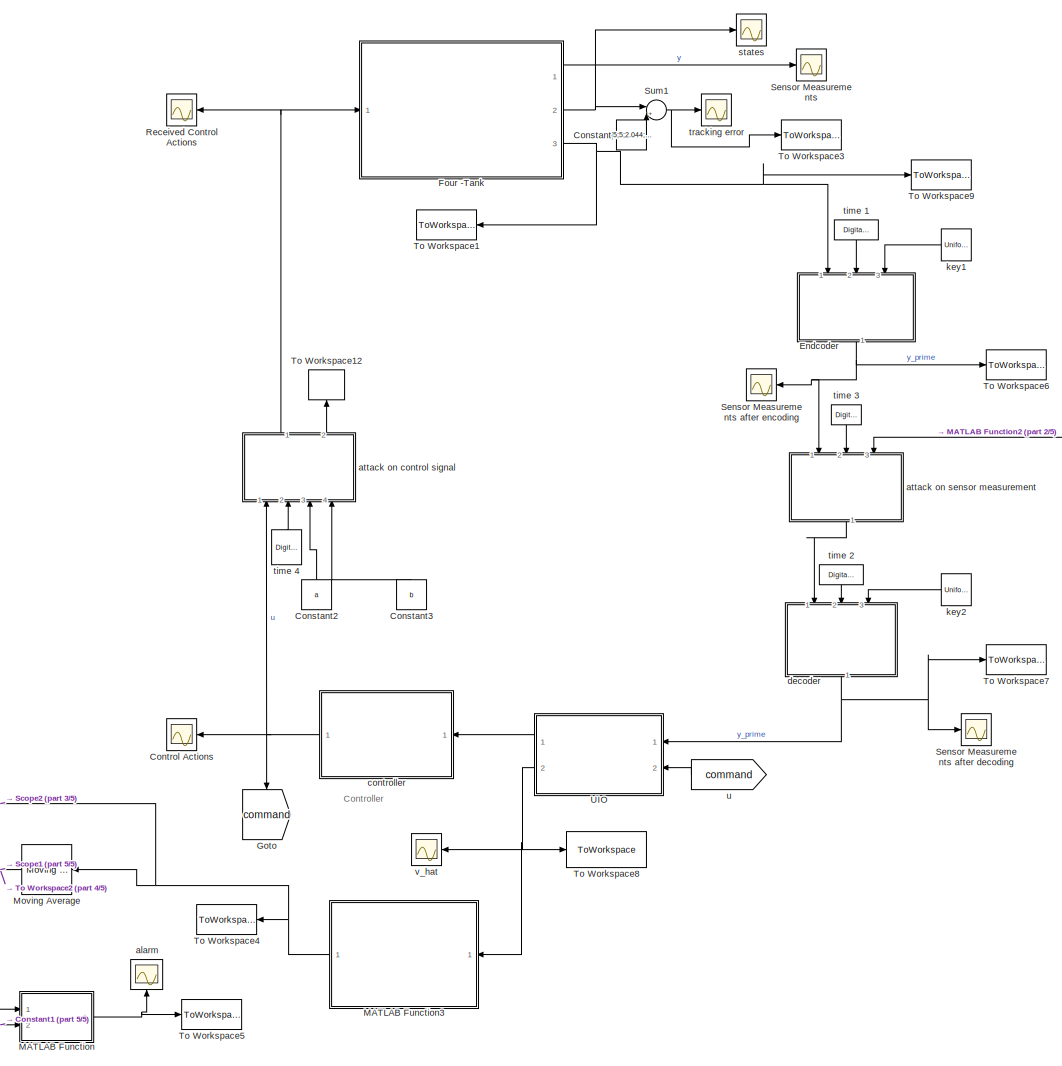
[diagram: root canvas - part 1/5, center side, full height]
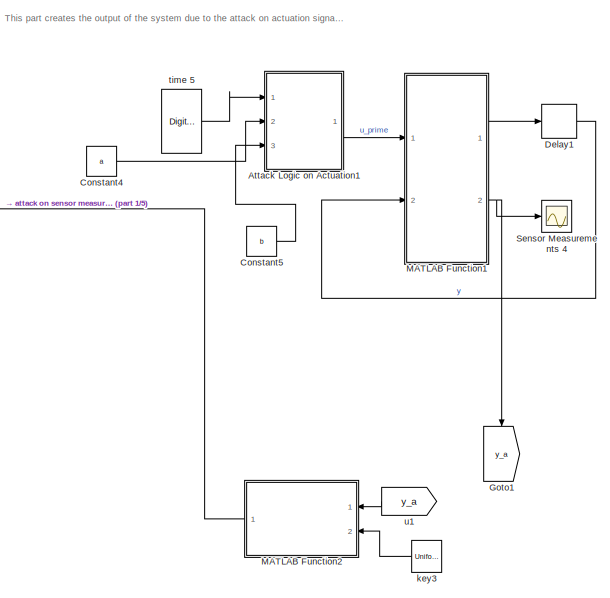
[diagram: root canvas - part 2/5, middle right region]
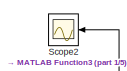
[diagram: root canvas - part 3/5, middle left region]
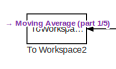
[diagram: root canvas - part 4/5, bottom left region]
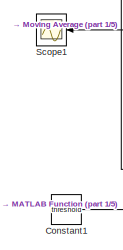
[diagram: root canvas - part 5/5, bottom left region]
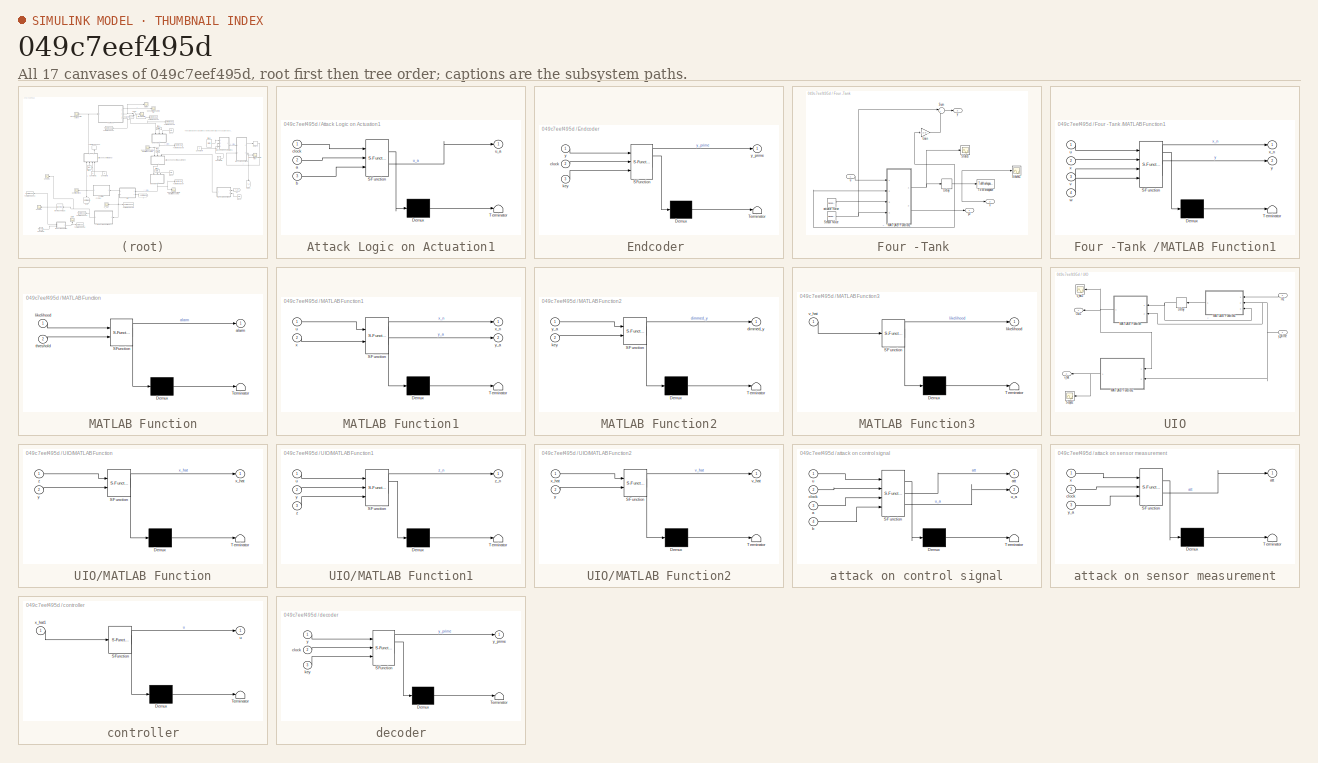
[diagram: thumbnail index - all 17 canvases of the model, root first then tree order]
MODEL slx_049c7eef495d
KIND model
CONFIG AbsTol = auto
CONFIG EnableMultiTasking = off
CONFIG FixedStep = auto
CONFIG MaxStep = auto
CONFIG MinStep = auto
CONFIG RelTol = 1e-3
CONFIG SampleTimeConstraint = Unconstrained
CONFIG SolverName = VariableStepAuto
CONFIG StartTime = 0.0
CONFIG StopTime = simulation_time
BLOCK [Scope]  Control Actions
  Floating = off
  NumInputPorts = 1
  Ports = [1]
  ScopeSpecificationString = Simulink.scopes.TimeScopeBlockCfg('CurrentConfiguration', extmgr.ConfigurationSet(extmgr.Configuration('Core','General UI',true),extmgr.Configuration('Core','Source UI',true),extmgr.Configuration('Sources','WiredSimulink',true,'DataLoggingLimitDataPoints',true,'DataLoggingSaveFormat','Array','DataLoggingDecimation','1','DataLoggingDecimateData',true,'DataLoggingVariableName','ScopeData1'),extmgr.C...<+1578ch>
BLOCK [SubSystem] Attack Logic on Actuation1
  ErrorFcn = Stateflow.Translate.translate
  PermitHierarchicalResolution = ExplicitOnly
  Ports = [3, 1]
  RequestExecContextInheritance = off
  SFBlockType = MATLAB Function
  TreatAsAtomicUnit = on
BLOCK [Demux] Attack Logic on Actuation1/ Demux 
  Outputs = 1
  Ports = [1, 1]
BLOCK [S-Function] Attack Logic on Actuation1/ SFunction 
  EnableBusSupport = on
  FunctionName = sf_sfun
  PortCounts = [3 2]
  Ports = [3, 2]
  SFcnIsStateOwnerBlock = off
  SFunctionDeploymentMode = off
  Tag = Stateflow S-Function 12
BLOCK [Terminator] Attack Logic on Actuation1/ Terminator 
BLOCK [Inport] Attack Logic on Actuation1/a
  Port = 2
BLOCK [Inport] Attack Logic on Actuation1/b
  Port = 3
BLOCK [Inport] Attack Logic on Actuation1/clock
BLOCK [Outport] Attack Logic on Actuation1/u_a
  VectorParamsAs1DForOutWhenUnconnected = off
BLOCK [Constant] Constant
  SampleTime = sample_time
  Value = [5;5;2.044;1.399]
BLOCK [Constant] Constant1
  SampleTime = sample_time
  Value = threshold
BLOCK [Constant] Constant2
  NameLocation = right
  SampleTime = sample_time
  Value = a
BLOCK [Constant] Constant3
  NameLocation = right
  SampleTime = sample_time
  Value = b
BLOCK [Constant] Constant4
  SampleTime = sample_time
  Value = a
BLOCK [Constant] Constant5
  SampleTime = sample_time
  Value = b
BLOCK [Delay] Delay1
  DelayLength = 1
  InitialCondition = [0;0;0;0]
  InputPortMap = u0
  Ports = [1, 1]
  SampleTime = sample_time
BLOCK [SubSystem] Endcoder 
  ErrorFcn = Stateflow.Translate.translate
  NameLocation = left
  PermitHierarchicalResolution = ExplicitOnly
  Ports = [3, 1]
  RequestExecContextInheritance = off
  SFBlockType = MATLAB Function
  TreatAsAtomicUnit = on
BLOCK [Demux] Endcoder / Demux 
  Outputs = 1
  Ports = [1, 1]
BLOCK [S-Function] Endcoder / SFunction 
  EnableBusSupport = on
  FunctionName = sf_sfun
  PortCounts = [3 2]
  Ports = [3, 2]
  SFcnIsStateOwnerBlock = off
  SFunctionDeploymentMode = off
  Tag = Stateflow S-Function 1
BLOCK [Terminator] Endcoder / Terminator 
BLOCK [Inport] Endcoder /clock
  Port = 2
BLOCK [Inport] Endcoder /key
  Port = 3
BLOCK [Inport] Endcoder /y
BLOCK [Outport] Endcoder /y_prime
  VectorParamsAs1DForOutWhenUnconnected = off
BLOCK [SubSystem] Four -Tank 
  Ports = [1, 3]
  RequestExecContextInheritance = off
BLOCK [Delay] Four -Tank /Delay
  DelayLength = 1
  InitialCondition = [5;5;2;1]
  InputPortMap = u0
  Ports = [1, 1]
  SampleTime = sample_time
BLOCK [Gain] Four -Tank /Gain
  Gain = [0.2 0 0 0;0 1.5 0 0;0 0 10.5 0;0 0 0 1.7]
  Multiplication = Matrix(K*u)
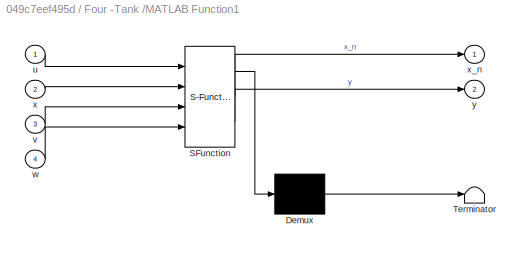
BLOCK [SubSystem] Four -Tank /MATLAB Function1
  ErrorFcn = Stateflow.Translate.translate
  PermitHierarchicalResolution = ExplicitOnly
  Ports = [4, 2]
  RequestExecContextInheritance = off
  SFBlockType = MATLAB Function
  TreatAsAtomicUnit = on
BLOCK [Demux] Four -Tank /MATLAB Function1/ Demux 
  Outputs = 1
  Ports = [1, 1]
BLOCK [S-Function] Four -Tank /MATLAB Function1/ SFunction 
  EnableBusSupport = on
  FunctionName = sf_sfun
  PortCounts = [4 3]
  Ports = [4, 3]
  SFcnIsStateOwnerBlock = off
  SFunctionDeploymentMode = off
  Tag = Stateflow S-Function 5
BLOCK [Terminator] Four -Tank /MATLAB Function1/ Terminator 
BLOCK [Inport] Four -Tank /MATLAB Function1/u
BLOCK [Inport] Four -Tank /MATLAB Function1/v
  Port = 3
BLOCK [Inport] Four -Tank /MATLAB Function1/w
  Port = 4
BLOCK [Inport] Four -Tank /MATLAB Function1/x
  Port = 2
BLOCK [Outport] Four -Tank /MATLAB Function1/x_n
  VectorParamsAs1DForOutWhenUnconnected = off
BLOCK [Outport] Four -Tank /MATLAB Function1/y
  Port = 2
  VectorParamsAs1DForOutWhenUnconnected = off
BLOCK [RandomNumber] Four -Tank /Sensor Noise
  Mean = [0 0 0 0]
  SampleTime = sample_time
  Seed = [randi(100) randi(100) randi(100) randi(100)]
  Variance = [0.00001 0.00001 0.00001 0.00001]
BLOCK [Scope] Four -Tank /States
  Floating = off
  NumInputPorts = 1
  Ports = [1]
  ScopeSpecificationString = Simulink.scopes.TimeScopeBlockCfg('CurrentConfiguration', extmgr.ConfigurationSet(extmgr.Configuration('Core','General UI',true),extmgr.Configuration('Core','Source UI',true),extmgr.Configuration('Sources','WiredSimulink',true,'DataLoggingVariableName','ScopeData1'),extmgr.Configuration('Visuals','Time Domain',true,'SerializedDisplays',{struct('MinYLimReal','-8.8915','MaxYLimReal','5.79536','YLabe...<+1550ch>
BLOCK [Scope] Four -Tank /States1
  Floating = off
  NumInputPorts = 1
  Ports = [1]
  ScopeSpecificationString = Simulink.scopes.TimeScopeBlockCfg('CurrentConfiguration', extmgr.ConfigurationSet(extmgr.Configuration('Core','General UI',true),extmgr.Configuration('Core','Source UI',true),extmgr.Configuration('Sources','WiredSimulink',true,'DataLoggingVariableName','ScopeData1'),extmgr.Configuration('Visuals','Time Domain',true,'SerializedDisplays',{struct('MinYLimReal','-3.65884','MaxYLimReal','5.96209','YLab...<+1477ch>
BLOCK [Sum] Four -Tank /Sum
  Inputs = |++
  Ports = [2, 1]
BLOCK [ToWorkspace] Four -Tank /To Workspace
  FixptAsFi = on
  MaxDataPoints = inf
  Ports = [1]
  SampleTime = sample_time
  SaveFormat = Timeseries
  VariableName = x_k
BLOCK [RandomNumber] Four -Tank /actuator Noise
  Mean = [0 0 0 0]
  SampleTime = sample_time
  Seed = [randi(100) randi(100) randi(100) randi(100)]
  Variance = [0.00001 0.00001 0.00001 0.00001]
BLOCK [Inport] Four -Tank /u
BLOCK [Outport] Four -Tank /x 
  Port = 2
  VectorParamsAs1DForOutWhenUnconnected = off
BLOCK [Outport] Four -Tank /y
  Port = 3
  VectorParamsAs1DForOutWhenUnconnected = off
BLOCK [Outport] Four -Tank /y2
  VectorParamsAs1DForOutWhenUnconnected = off
BLOCK [Goto] Goto
  GotoTag = command
  NameLocation = left
BLOCK [Goto] Goto1
  GotoTag = y_a
  NameLocation = left
BLOCK [SubSystem] MATLAB Function
  ErrorFcn = Stateflow.Translate.translate
  PermitHierarchicalResolution = ExplicitOnly
  Ports = [2, 1]
  RequestExecContextInheritance = off
  SFBlockType = MATLAB Function
  TreatAsAtomicUnit = on
BLOCK [Demux] MATLAB Function/ Demux 
  Outputs = 1
  Ports = [1, 1]
BLOCK [S-Function] MATLAB Function/ SFunction 
  EnableBusSupport = on
  FunctionName = sf_sfun
  PortCounts = [2 2]
  Ports = [2, 2]
  SFcnIsStateOwnerBlock = off
  SFunctionDeploymentMode = off
  Tag = Stateflow S-Function 11
BLOCK [Terminator] MATLAB Function/ Terminator 
BLOCK [Outport] MATLAB Function/alarm
BLOCK [Inport] MATLAB Function/likelihood
BLOCK [Inport] MATLAB Function/threshold
  Port = 2
BLOCK [SubSystem] MATLAB Function1
  ErrorFcn = Stateflow.Translate.translate
  PermitHierarchicalResolution = ExplicitOnly
  Ports = [2, 2]
  RequestExecContextInheritance = off
  SFBlockType = MATLAB Function
  TreatAsAtomicUnit = on
BLOCK [Demux] MATLAB Function1/ Demux 
  Outputs = 1
  Ports = [1, 1]
BLOCK [S-Function] MATLAB Function1/ SFunction 
  EnableBusSupport = on
  FunctionName = sf_sfun
  PortCounts = [2 3]
  Ports = [2, 3]
  SFcnIsStateOwnerBlock = off
  SFunctionDeploymentMode = off
  Tag = Stateflow S-Function 13
BLOCK [Terminator] MATLAB Function1/ Terminator 
BLOCK [Inport] MATLAB Function1/u
BLOCK [Inport] MATLAB Function1/x
  Port = 2
BLOCK [Outport] MATLAB Function1/x_n
  VectorParamsAs1DForOutWhenUnconnected = off
BLOCK [Outport] MATLAB Function1/y_a
  Port = 2
  VectorParamsAs1DForOutWhenUnconnected = off
BLOCK [SubSystem] MATLAB Function2
  ErrorFcn = Stateflow.Translate.translate
  NameLocation = top
  PermitHierarchicalResolution = ExplicitOnly
  Ports = [2, 1]
  RequestExecContextInheritance = off
  SFBlockType = MATLAB Function
  TreatAsAtomicUnit = on
BLOCK [Demux] MATLAB Function2/ Demux 
  Outputs = 1
  Ports = [1, 1]
BLOCK [S-Function] MATLAB Function2/ SFunction 
  EnableBusSupport = on
  FunctionName = sf_sfun
  PortCounts = [2 2]
  Ports = [2, 2]
  SFcnIsStateOwnerBlock = off
  SFunctionDeploymentMode = off
  Tag = Stateflow S-Function 14
BLOCK [Terminator] MATLAB Function2/ Terminator 
BLOCK [Outport] MATLAB Function2/dimmed_y
  VectorParamsAs1DForOutWhenUnconnected = off
BLOCK [Inport] MATLAB Function2/key
  Port = 2
BLOCK [Inport] MATLAB Function2/y_a
BLOCK [SubSystem] MATLAB Function3
  ErrorFcn = Stateflow.Translate.translate
  NameLocation = top
  PermitHierarchicalResolution = ExplicitOnly
  Ports = [1, 1]
  RequestExecContextInheritance = off
  SFBlockType = MATLAB Function
  TreatAsAtomicUnit = on
BLOCK [Demux] MATLAB Function3/ Demux 
  Outputs = 1
  Ports = [1, 1]
BLOCK [S-Function] MATLAB Function3/ SFunction 
  EnableBusSupport = on
  FunctionName = sf_sfun
  PortCounts = [1 2]
  Ports = [1, 2]
  SFcnIsStateOwnerBlock = off
  SFunctionDeploymentMode = off
  Tag = Stateflow S-Function 7
BLOCK [Terminator] MATLAB Function3/ Terminator 
BLOCK [Outport] MATLAB Function3/likelihood
  VectorParamsAs1DForOutWhenUnconnected = off
BLOCK [Inport] MATLAB Function3/v_hat
BLOCK [Reference] Moving Average  REF=dspstat3/Moving
Average
  NameLocation = top
  Ports = [1, 1]
  SourceBlock = dspstat3/Moving\nAverage
  SourceProductBaseCode = DS
  SourceType = dsp.simulink.MovingAverage
BLOCK [Scope] Received Control Actions
  Floating = off
  NumInputPorts = 1
  Ports = [1]
  ScopeSpecificationString = Simulink.scopes.TimeScopeBlockCfg('CurrentConfiguration', extmgr.ConfigurationSet(extmgr.Configuration('Core','General UI',true),extmgr.Configuration('Core','Source UI',true),extmgr.Configuration('Sources','WiredSimulink',true,'DataLoggingLimitDataPoints',true,'DataLoggingSaveFormat','Array','DataLoggingDecimation','1','DataLoggingDecimateData',true,'DataLoggingVariableName','ScopeData2'),extmgr.C...<+1652ch>
BLOCK [Scope] Scope1
  Floating = off
  NameLocation = top
  NumInputPorts = 1
  Ports = [1]
  ScopeSpecificationString = Simulink.scopes.TimeScopeBlockCfg('CurrentConfiguration', extmgr.ConfigurationSet(extmgr.Configuration('Core','General UI',true),extmgr.Configuration('Core','Source UI',true),extmgr.Configuration('Sources','WiredSimulink',true,'DataLoggingVariableName','ScopeData4'),extmgr.Configuration('Visuals','Time Domain',true,'SerializedDisplays',{struct('MinYLimReal','-1286647809354.28613','MaxYLimReal','11...<+1550ch>
BLOCK [Scope] Scope2
  Floating = off
  NameLocation = top
  NumInputPorts = 1
  Ports = [1]
  ScopeSpecificationString = Simulink.scopes.TimeScopeBlockCfg('CurrentConfiguration', extmgr.ConfigurationSet(extmgr.Configuration('Core','General UI',true),extmgr.Configuration('Core','Source UI',true),extmgr.Configuration('Sources','WiredSimulink',true,'DataLoggingVariableName','ScopeData1'),extmgr.Configuration('Visuals','Time Domain',true,'SerializedDisplays',{struct('MinYLimReal','-23321549837740042746050882842062409475...<+2506ch>
BLOCK [Scope] Sensor Measurements
  Floating = off
  NumInputPorts = 1
  Ports = [1]
  ScopeSpecificationString = Simulink.scopes.TimeScopeBlockCfg('CurrentConfiguration', extmgr.ConfigurationSet(extmgr.Configuration('Core','General UI',true),extmgr.Configuration('Core','Source UI',true),extmgr.Configuration('Sources','WiredSimulink',true,'DataLoggingVariableName','ScopeData5'),extmgr.Configuration('Visuals','Time Domain',true,'SerializedDisplays',{struct('MinYLimReal','-2.1924','MaxYLimReal','29.63231','YLab...<+1463ch>
BLOCK [Scope] Sensor Measurements 4
  Floating = off
  NumInputPorts = 1
  Ports = [1]
  ScopeSpecificationString = Simulink.scopes.TimeScopeBlockCfg('CurrentConfiguration', extmgr.ConfigurationSet(extmgr.Configuration('Core','General UI',true),extmgr.Configuration('Core','Source UI',true),extmgr.Configuration('Sources','WiredSimulink',true,'DataLoggingVariableName','ScopeData12'),extmgr.Configuration('Visuals','Time Domain',true,'SerializedDisplays',{struct('MinYLimReal','-17.50746','MaxYLimReal','25.27861','Y...<+1561ch>
BLOCK [Scope] Sensor Measurements after decoding
  Floating = off
  NumInputPorts = 1
  Ports = [1]
  ScopeSpecificationString = Simulink.scopes.TimeScopeBlockCfg('CurrentConfiguration', extmgr.ConfigurationSet(extmgr.Configuration('Core','General UI',true),extmgr.Configuration('Core','Source UI',true),extmgr.Configuration('Sources','WiredSimulink',true,'DataLoggingVariableName','ScopeData6'),extmgr.Configuration('Visuals','Time Domain',true,'SerializedDisplays',{struct('MinYLimReal','-10.80747','MaxYLimReal','71.42508','YL...<+1491ch>
BLOCK [Scope] Sensor Measurements after encoding
  Floating = off
  NameLocation = top
  NumInputPorts = 1
  Ports = [1]
  ScopeSpecificationString = Simulink.scopes.TimeScopeBlockCfg('CurrentConfiguration', extmgr.ConfigurationSet(extmgr.Configuration('Core','General UI',true),extmgr.Configuration('Core','Source UI',true),extmgr.Configuration('Sources','WiredSimulink',true,'DataLoggingVariableName','ScopeData7'),extmgr.Configuration('Visuals','Time Domain',true,'SerializedDisplays',{struct('MinYLimReal','-1.23114','MaxYLimReal','1.77363','YLab...<+1637ch>
BLOCK [Sum] Sum1
  Inputs = |+-
  Ports = [2, 1]
BLOCK [ToWorkspace] To Workspace1
  FixptAsFi = on
  MaxDataPoints = inf
  NameLocation = top
  Ports = [1]
  SampleTime = sample_time
  SaveFormat = Timeseries
  VariableName = states
BLOCK [ToWorkspace] To Workspace12
  FixptAsFi = on
  MaxDataPoints = inf
  NameLocation = right
  Ports = [1]
  SampleTime = sample_time
  SaveFormat = Timeseries
  VariableName = u_a
BLOCK [ToWorkspace] To Workspace2
  FixptAsFi = on
  MaxDataPoints = inf
  NameLocation = top
  Ports = [1]
  SampleTime = sample_time
  SaveFormat = Timeseries
  VariableName = likelihood_av
BLOCK [ToWorkspace] To Workspace3
  FixptAsFi = on
  MaxDataPoints = inf
  Ports = [1]
  SampleTime = sample_time
  SaveFormat = Timeseries
  VariableName = tracking_error
BLOCK [ToWorkspace] To Workspace4
  FixptAsFi = on
  MaxDataPoints = inf
  NameLocation = top
  Ports = [1]
  SampleTime = sample_time
  SaveFormat = Timeseries
  VariableName = likelihood
BLOCK [ToWorkspace] To Workspace5
  FixptAsFi = on
  MaxDataPoints = inf
  Ports = [1]
  SampleTime = sample_time
  SaveFormat = Timeseries
  VariableName = alarm
BLOCK [ToWorkspace] To Workspace6
  FixptAsFi = on
  MaxDataPoints = inf
  Ports = [1]
  SampleTime = sample_time
  SaveFormat = Timeseries
  VariableName = channel_before
BLOCK [ToWorkspace] To Workspace7
  FixptAsFi = on
  MaxDataPoints = inf
  Ports = [1]
  SampleTime = sample_time
  SaveFormat = Timeseries
  VariableName = channel_after
BLOCK [ToWorkspace] To Workspace8
  FixptAsFi = on
  MaxDataPoints = inf
  Ports = [1]
  SampleTime = sample_time
  SaveFormat = Timeseries
  VariableName = v_hat
BLOCK [ToWorkspace] To Workspace9
  FixptAsFi = on
  MaxDataPoints = inf
  Ports = [1]
  SampleTime = sample_time
  SaveFormat = Timeseries
  VariableName = sensors
BLOCK [SubSystem] UIO
  Ports = [2, 2]
  RequestExecContextInheritance = off
BLOCK [Delay] UIO/Delay
  DelayLength = 1
  InitialCondition = [5;5;2;1]
  InputPortMap = u0
  NameLocation = top
  Ports = [1, 1]
  SampleTime = sample_time
BLOCK [Inport] UIO/In2
  Port = 2
BLOCK [SubSystem] UIO/MATLAB Function
  ErrorFcn = Stateflow.Translate.translate
  NameLocation = top
  PermitHierarchicalResolution = ExplicitOnly
  Ports = [2, 1]
  RequestExecContextInheritance = off
  SFBlockType = MATLAB Function
  TreatAsAtomicUnit = on
BLOCK [Demux] UIO/MATLAB Function/ Demux 
  Outputs = 1
  Ports = [1, 1]
BLOCK [S-Function] UIO/MATLAB Function/ SFunction 
  EnableBusSupport = on
  FunctionName = sf_sfun
  PortCounts = [2 2]
  Ports = [2, 2]
  SFcnIsStateOwnerBlock = off
  SFunctionDeploymentMode = off
  Tag = Stateflow S-Function 4
BLOCK [Terminator] UIO/MATLAB Function/ Terminator 
BLOCK [Outport] UIO/MATLAB Function/x_hat
  VectorParamsAs1DForOutWhenUnconnected = off
BLOCK [Inport] UIO/MATLAB Function/y
  Port = 2
BLOCK [Inport] UIO/MATLAB Function/z
BLOCK [SubSystem] UIO/MATLAB Function1
  ErrorFcn = Stateflow.Translate.translate
  NameLocation = top
  PermitHierarchicalResolution = ExplicitOnly
  Ports = [3, 1]
  RequestExecContextInheritance = off
  SFBlockType = MATLAB Function
  TreatAsAtomicUnit = on
BLOCK [Demux] UIO/MATLAB Function1/ Demux 
  Outputs = 1
  Ports = [1, 1]
BLOCK [S-Function] UIO/MATLAB Function1/ SFunction 
  EnableBusSupport = on
  FunctionName = sf_sfun
  PortCounts = [3 2]
  Ports = [3, 2]
  SFcnIsStateOwnerBlock = off
  SFunctionDeploymentMode = off
  Tag = Stateflow S-Function 3
BLOCK [Terminator] UIO/MATLAB Function1/ Terminator 
BLOCK [Inport] UIO/MATLAB Function1/u
BLOCK [Inport] UIO/MATLAB Function1/y
  Port = 2
BLOCK [Inport] UIO/MATLAB Function1/z
  Port = 3
BLOCK [Outport] UIO/MATLAB Function1/z_n
  VectorParamsAs1DForOutWhenUnconnected = off
BLOCK [SubSystem] UIO/MATLAB Function2
  ErrorFcn = Stateflow.Translate.translate
  NameLocation = top
  PermitHierarchicalResolution = ExplicitOnly
  Ports = [2, 1]
  RequestExecContextInheritance = off
  SFBlockType = MATLAB Function
  TreatAsAtomicUnit = on
BLOCK [Demux] UIO/MATLAB Function2/ Demux 
  Outputs = 1
  Ports = [1, 1]
BLOCK [S-Function] UIO/MATLAB Function2/ SFunction 
  EnableBusSupport = on
  FunctionName = sf_sfun
  PortCounts = [2 2]
  Ports = [2, 2]
  SFcnIsStateOwnerBlock = off
  SFunctionDeploymentMode = off
  Tag = Stateflow S-Function 6
BLOCK [Terminator] UIO/MATLAB Function2/ Terminator 
BLOCK [Outport] UIO/MATLAB Function2/v_hat
  VectorParamsAs1DForOutWhenUnconnected = off
BLOCK [Inport] UIO/MATLAB Function2/x_hat
BLOCK [Inport] UIO/MATLAB Function2/y
  Port = 2
BLOCK [Outport] UIO/Out1
  VectorParamsAs1DForOutWhenUnconnected = off
BLOCK [Scope] UIO/Scope2
  Floating = off
  NameLocation = top
  NumInputPorts = 1
  Ports = [1]
  ScopeSpecificationString = Simulink.scopes.TimeScopeBlockCfg('CurrentConfiguration', extmgr.ConfigurationSet(extmgr.Configuration('Core','General UI',true),extmgr.Configuration('Core','Source UI',true),extmgr.Configuration('Sources','WiredSimulink',true,'DataLoggingVariableName','ScopeData7'),extmgr.Configuration('Visuals','Time Domain',true,'SerializedDisplays',{struct('MinYLimReal','-0.05627','MaxYLimReal','0.04683','YLab...<+1494ch>
BLOCK [Outport] UIO/v_hat
  Port = 2
  VectorParamsAs1DForOutWhenUnconnected = off
BLOCK [Scope] UIO/v_hat2
  Floating = off
  NameLocation = top
  NumInputPorts = 1
  Ports = [1]
  ScopeSpecificationString = Simulink.scopes.TimeScopeBlockCfg('CurrentConfiguration', extmgr.ConfigurationSet(extmgr.Configuration('Core','General UI',true,'DisplayFullSourceName',true,'ShowStatusbar',false),extmgr.Configuration('Core','Source UI',true),extmgr.Configuration('Sources','WiredSimulink',true,'DataLoggingVariableName','ScopeData5'),extmgr.Configuration('Visuals','Time Domain',true,'SerializedDisplays',{struct('Mi...<+1564ch>
BLOCK [Inport] UIO/y_prime
  NameLocation = top
BLOCK [Scope] alarm
  Floating = off
  NameLocation = right
  NumInputPorts = 1
  Ports = [1]
  ScopeSpecificationString = Simulink.scopes.TimeScopeBlockCfg('CurrentConfiguration', extmgr.ConfigurationSet(extmgr.Configuration('Core','General UI',true,'ShowStatusbar',false),extmgr.Configuration('Core','Source UI',true),extmgr.Configuration('Sources','WiredSimulink',true,'DataLoggingVariableName','ScopeData8'),extmgr.Configuration('Visuals','Time Domain',true,'SerializedDisplays',{struct('MinYLimReal','-0.125','MaxYLimR...<+1465ch>
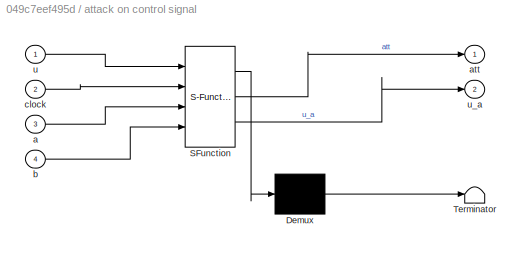
BLOCK [SubSystem] attack on control signal
  ErrorFcn = Stateflow.Translate.translate
  NameLocation = right
  PermitHierarchicalResolution = ExplicitOnly
  Ports = [4, 2]
  RequestExecContextInheritance = off
  SFBlockType = MATLAB Function
  TreatAsAtomicUnit = on
BLOCK [Demux] attack on control signal/ Demux 
  Outputs = 1
  Ports = [1, 1]
BLOCK [S-Function] attack on control signal/ SFunction 
  EnableBusSupport = on
  FunctionName = sf_sfun
  PortCounts = [4 3]
  Ports = [4, 3]
  SFcnIsStateOwnerBlock = off
  SFunctionDeploymentMode = off
  Tag = Stateflow S-Function 10
BLOCK [Terminator] attack on control signal/ Terminator 
BLOCK [Inport] attack on control signal/a
  Port = 3
BLOCK [Outport] attack on control signal/att
  VectorParamsAs1DForOutWhenUnconnected = off
BLOCK [Inport] attack on control signal/b
  Port = 4
BLOCK [Inport] attack on control signal/clock
  Port = 2
BLOCK [Inport] attack on control signal/u
BLOCK [Outport] attack on control signal/u_a
  Port = 2
BLOCK [SubSystem] attack on sensor measurement
  ErrorFcn = Stateflow.Translate.translate
  NameLocation = left
  PermitHierarchicalResolution = ExplicitOnly
  Ports = [3, 1]
  RequestExecContextInheritance = off
  SFBlockType = MATLAB Function
  TreatAsAtomicUnit = on
BLOCK [Demux] attack on sensor measurement/ Demux 
  Outputs = 1
  Ports = [1, 1]
BLOCK [S-Function] attack on sensor measurement/ SFunction 
  EnableBusSupport = on
  FunctionName = sf_sfun
  PortCounts = [3 2]
  Ports = [3, 2]
  SFcnIsStateOwnerBlock = off
  SFunctionDeploymentMode = off
  Tag = Stateflow S-Function 9
BLOCK [Terminator] attack on sensor measurement/ Terminator 
BLOCK [Outport] attack on sensor measurement/att
  VectorParamsAs1DForOutWhenUnconnected = off
BLOCK [Inport] attack on sensor measurement/clock
  Port = 2
BLOCK [Inport] attack on sensor measurement/x
BLOCK [Inport] attack on sensor measurement/y_a
  Port = 3
BLOCK [SubSystem] controller
  ErrorFcn = Stateflow.Translate.translate
  NameLocation = top
  PermitHierarchicalResolution = ExplicitOnly
  Ports = [1, 1]
  RequestExecContextInheritance = off
  SFBlockType = MATLAB Function
  TreatAsAtomicUnit = on
BLOCK [Demux] controller/ Demux 
  Outputs = 1
  Ports = [1, 1]
BLOCK [S-Function] controller/ SFunction 
  EnableBusSupport = on
  FunctionName = sf_sfun
  PortCounts = [1 2]
  Ports = [1, 2]
  SFcnIsStateOwnerBlock = off
  SFunctionDeploymentMode = off
  Tag = Stateflow S-Function 2
BLOCK [Terminator] controller/ Terminator 
BLOCK [Outport] controller/u
  VectorParamsAs1DForOutWhenUnconnected = off
BLOCK [Inport] controller/x_hat1
BLOCK [SubSystem] decoder
  ErrorFcn = Stateflow.Translate.translate
  NameLocation = left
  PermitHierarchicalResolution = ExplicitOnly
  Ports = [3, 1]
  RequestExecContextInheritance = off
  SFBlockType = MATLAB Function
  TreatAsAtomicUnit = on
BLOCK [Demux] decoder/ Demux 
  Outputs = 1
  Ports = [1, 1]
BLOCK [S-Function] decoder/ SFunction 
  EnableBusSupport = on
  FunctionName = sf_sfun
  PortCounts = [3 2]
  Ports = [3, 2]
  SFcnIsStateOwnerBlock = off
  SFunctionDeploymentMode = off
  Tag = Stateflow S-Function 8
BLOCK [Terminator] decoder/ Terminator 
BLOCK [Inport] decoder/clock
  Port = 2
BLOCK [Inport] decoder/key
  Port = 3
BLOCK [Inport] decoder/y
BLOCK [Outport] decoder/y_prime
  VectorParamsAs1DForOutWhenUnconnected = off
BLOCK [UniformRandomNumber] key1
  Maximum = 4
  Minimum = 0
  NameLocation = top
  SampleTime = sample_time
  Seed = 20
BLOCK [UniformRandomNumber] key2
  Maximum = 4
  Minimum = 0
  NameLocation = top
  SampleTime = sample_time
  Seed = 20
BLOCK [UniformRandomNumber] key3
  Maximum = 4
  Minimum = 0
  NameLocation = top
  SampleTime = sample_time
  Seed = 20
BLOCK [Scope] states
  Floating = off
  NumInputPorts = 1
  Ports = [1]
  ScopeSpecificationString = Simulink.scopes.TimeScopeBlockCfg('CurrentConfiguration', extmgr.ConfigurationSet(extmgr.Configuration('Core','General UI',true),extmgr.Configuration('Core','Source UI',true),extmgr.Configuration('Sources','WiredSimulink',true,'DataLoggingVariableName','ScopeData9'),extmgr.Configuration('Visuals','Time Domain',true,'SerializedDisplays',{struct('MinYLimReal','-0.41734','MaxYLimReal','5.60193','YLab...<+1499ch>
BLOCK [DigitalClock] time 1
  NameLocation = right
  SampleTime = sample_time
BLOCK [DigitalClock] time 2
  NameLocation = right
  SampleTime = sample_time
BLOCK [DigitalClock] time 3
  NameLocation = right
  SampleTime = sample_time
BLOCK [DigitalClock] time 4
  NameLocation = left
  SampleTime = sample_time
BLOCK [DigitalClock] time 5
  NameLocation = top
  SampleTime = sample_time
BLOCK [Scope] tracking error
  Floating = off
  NumInputPorts = 1
  Ports = [1]
  ScopeSpecificationString = Simulink.scopes.TimeScopeBlockCfg('CurrentConfiguration', extmgr.ConfigurationSet(extmgr.Configuration('Core','General UI',true,'DisplayFullSourceName',true,'ShowStatusbar',false),extmgr.Configuration('Core','Source UI',true),extmgr.Configuration('Sources','WiredSimulink',true,'DataLoggingVariableName','ScopeData10'),extmgr.Configuration('Visuals','Time Domain',true,'SerializedDisplays',{struct('M...<+1523ch>
BLOCK [From] u
  GotoTag = command
  NameLocation = top
BLOCK [From] u1
  GotoTag = y_a
  NameLocation = top
BLOCK [Scope] v_hat
  Floating = off
  NameLocation = top
  NumInputPorts = 1
  Ports = [1]
  ScopeSpecificationString = Simulink.scopes.TimeScopeBlockCfg('CurrentConfiguration', extmgr.ConfigurationSet(extmgr.Configuration('Core','General UI',true,'DisplayFullSourceName',true,'ShowStatusbar',false),extmgr.Configuration('Core','Source UI',true),extmgr.Configuration('Sources','WiredSimulink',true,'DataLoggingVariableName','ScopeData11'),extmgr.Configuration('Visuals','Time Domain',true,'SerializedDisplays',{struct('M...<+1979ch>
ANNOTATION (root): This part creates the output of the system due to the attack on actuation signals
ANNOTATION (root): Controller
LINE Attack Logic on Actuation1:1 -> MATLAB Function1:1
LINE Constant1:1 -> MATLAB Function:2
LINE Constant2:1 -> attack on control signal:3
LINE Constant3:1 -> attack on control signal:4
LINE Constant4:1 -> Attack Logic on Actuation1:2
LINE Constant5:1 -> Attack Logic on Actuation1:3
LINE Constant:1 -> Sum1:2
LINE Delay1:1 -> MATLAB Function1:2
NET Endcoder :1 -> Sensor Measurements after encoding:1, To Workspace6:1, attack on sensor measurement:1
NET Four -Tank /Delay:1 -> Four -Tank /Gain:1, Four -Tank /MATLAB Function1:2, Four -Tank /States1:1, Four -Tank /To Workspace:1, Four -Tank /x :1
LINE Four -Tank /Gain:1 -> Four -Tank /Sum:2
NET Four -Tank /MATLAB Function1:1 -> Four -Tank /Delay:1, Four -Tank /States:1
LINE Four -Tank /MATLAB Function1:2 -> Four -Tank /y2:1
NET Four -Tank /Sensor Noise:1 -> Four -Tank /MATLAB Function1:4, Four -Tank /Sum:1
LINE Four -Tank /Sum:1 -> Four -Tank /y:1
LINE Four -Tank /actuator Noise:1 -> Four -Tank /MATLAB Function1:3
LINE Four -Tank /u:1 -> Four -Tank /MATLAB Function1:1
LINE Four -Tank :1 -> Sensor Measurements:1
NET Four -Tank :2 -> Sum1:1, states:1
NET Four -Tank :3 -> Endcoder :1, To Workspace1:1, To Workspace9:1
LINE MATLAB Function1:1 -> Delay1:1
NET MATLAB Function1:2 -> Goto1:1, Sensor Measurements 4:1
LINE MATLAB Function2:1 -> attack on sensor measurement:3
NET MATLAB Function3:1 -> Moving Average:1, Scope2:1, To Workspace4:1
NET MATLAB Function:1 -> To Workspace5:1, alarm:1
NET Moving Average:1 -> MATLAB Function:1, Scope1:1, To Workspace2:1
NET Sum1:1 -> To Workspace3:1, tracking error:1
NET UIO/Delay:1 -> UIO/MATLAB Function1:3, UIO/MATLAB Function:1
LINE UIO/In2:1 -> UIO/MATLAB Function1:1
LINE UIO/MATLAB Function1:1 -> UIO/Delay:1
NET UIO/MATLAB Function2:1 -> UIO/Scope2:1, UIO/v_hat:1
NET UIO/MATLAB Function:1 -> UIO/MATLAB Function2:1, UIO/Out1:1, UIO/v_hat2:1
NET UIO/y_prime:1 -> UIO/MATLAB Function1:2, UIO/MATLAB Function2:2, UIO/MATLAB Function:2
LINE UIO:1 -> controller:1
NET UIO:2 -> MATLAB Function3:1, To Workspace8:1, v_hat:1
NET attack on control signal:1 -> Four -Tank :1, Received Control Actions:1
LINE attack on control signal:2 -> To Workspace12:1
LINE attack on sensor measurement:1 -> decoder:1
NET controller:1 ->  Control Actions:1, Goto:1, attack on control signal:1
NET decoder:1 -> Sensor Measurements after decoding:1, To Workspace7:1, UIO:1
LINE key1:1 -> Endcoder :3
LINE key2:1 -> decoder:3
LINE key3:1 -> MATLAB Function2:2
LINE time 1:1 -> Endcoder :2
LINE time 2:1 -> decoder:2
LINE time 3:1 -> attack on sensor measurement:2
LINE time 4:1 -> attack on control signal:2
LINE time 5:1 -> Attack Logic on Actuation1:1
LINE u1:1 -> MATLAB Function2:1
LINE u:1 -> UIO:2
note: NET lines group one-source signal fan-out (src -> all destinations, sorted); 1:1 wires keep LINE
CHART MATLAB Function states=1 transitions=1
  STATE_LABEL 'eML_blk_kernel()'
  STATE_LABEL 'SCRIPT:\nfunction alarm = fcn(likelihood,threshold)\n\n% threshold = 0.8;\n\nif likelihood < threshold\n    alarm = 1;\nelse\n    alarm = 0;\nend\n\nend'
CHART Attack Logic on Actuation1 states=1 transitions=1
  STATE_LABEL 'eML_blk_kernel()'
  STATE_LABEL "SCRIPT:\nfunction u_a = fcn(clock,a,b)\n% this function should contain the attacker action on the control inputs\nif (clock>=0 && clock<100)\n    u_a = [0,0]';\nelseif clock>=250 && clock<350\n    u_a = [clock/a,clock/b]';\nelse\n    u_a = [0,0]';\nend\n\nu_a = u_a;"
CHART MATLAB Function1 states=1 transitions=1
  STATE_LABEL 'eML_blk_kernel()'
  STATE_LABEL 'SCRIPT:\nfunction [x_n, y_a] = fcn(u, x)\n\nA=[0.975 0 0.042 0;0 0.977 0 0.044;0 0 0.958 0;0 0 0 0.956];\nB=[0.0515 0.0016;0.0019 0.0447;0 0.0737;0.0850 0];\n\n\nC=[0.2 0 0 0;0 1.5 0 0;0 0 10.5 0;0 0 0 1.7];\nD=[0 0;0 0;0 0;0 0];\n\nx_n = A*x + B*u;\ny_a = C*x + D*u;\n'
CHART MATLAB Function2 states=1 transitions=1
  STATE_LABEL 'eML_blk_kernel()'
  STATE_LABEL 'SCRIPT:\n% function dimmed_y = attack(y_a,key)\n% \n% if key<=1\n% dimmed_y = [y_a,zeros(4,3)];\n% elseif key>1 && key<=2\n% dimmed_y = [y_a,zeros(4,3)];\n% \n% elseif key>2 && key<=3\n% dimmed_y = [y_a,zeros(4,3)];\n% \n% else\n% dimmed_y = [y_a,zeros(4,3)];\n% \n% end\n% \nfunction dimmed_y = attack(y_a,key)\n\nif key<=1\ndimmed_y = y_a;\nelseif key>1 && key<=2\ndimmed_y = y_a;\n\nelseif key>2 && key<=3\ndimmed_y = y_a...<+28ch>'
CHART Endcoder  states=1 transitions=1
  STATE_LABEL 'eML_blk_kernel()'
  STATE_LABEL 'SCRIPT:\nfunction y_prime = encoder(y,clock,key)\n% % this function should contain the attacker action on the sensor\n% % measurements\n\n\nt1 = [-0.3162 0 0 0;\n    0.6330 0 0 0;\n    -0.5626 0 0 0;\n    0.4275 0 0 0];\nt2 = [-0.3162 0.7194 0 0;\n    0.6330 0.2403 0 0;\n    -0.5626 -0.4739 0 0;\n    0.4275 -0.4473 0 0];\nt3 = [-0.3162 0.7194 0.6169 0;\n    0.6330 0.2403 -0.0085 0;\n    -0.5626 -0.4739 0.2184 0;\n...<+831ch>'
CHART controller states=1 transitions=1
  STATE_LABEL 'eML_blk_kernel()'
  STATE_LABEL 'SCRIPT:\nfunction u  = Controller(x_hat1)\n%two tanks model \nC=[0.2 0 0 0;0 1.5 0 0;0 0 10.5 0;0 0 0 1.7];\nA=[0.975 0 0.042 0;0 0.977 0 0.044;0 0 0.958 0;0 0 0 0.956];\nB=[0.0515 0.0016;0.0019 0.0447;0 0.0737;0.0850 0];\n\n%controller gain\n% K2=[-2.03 -0.0657 -0.0412 -3.2652;-1.0716 -2.3495 -3.7746 -0.0535];\n\nK2=[-0.03 0.0657 -.0412 3.2652;-0.0716 -2.3495 -3.7746 -0.0535];\nx_eq=[5;5;2.044;1.399];\nu_eq=...<+43ch>'
CHART UIO/MATLAB Function1 states=1 transitions=1
  STATE_LABEL 'eML_blk_kernel()'
  STATE_LABEL 'SCRIPT:\nfunction z_n = UIO(u,y,z)\n\nA=[0.975 0 0.042 0;0 0.977 0 0.044;0 0 0.958 0;0 0 0 0.956];\nB=[0.0515 0.0016;0.0019 0.0447;0 0.0737;0.0850 0];\n\n\nC=[0.2 0 0 0;0 1.5 0 0;0 0 10.5 0;0 0 0 1.7];\n% D=[0 0;0 0;0 0;0 0];\nD = [zeros(4,4) eye(4,4)];\n\n% M = [-0.0488   -0.0294    0.1047   -0.2264;...\n%    -0.0488   -0.0294    0.1047   -0.0264;...\n%    -0.0488   -0.0294    0.1047   -0.0264;...\n%    -0.548...<+1614ch>'
CHART UIO/MATLAB Function states=1 transitions=1
  STATE_LABEL 'eML_blk_kernel()'
  STATE_LABEL 'SCRIPT:\nfunction x_hat = estimator(z,y)\n\n% M = [-0.0488   -0.0294    0.1047   -0.0264;...\n%    -0.0488   -0.0294    0.1047   -0.0264;...\n%    -0.0488   -0.0294    0.1047   -0.0264;...\n%    -0.0488   -0.0294    0.1047   -0.0264];\n\nM = [-0.0488   -0.0294    0.1047   -0.0264;...\n   -0.0488   -0.0294    0.1047   -0.0264;...\n   -0.0488   -0.0294    0.1047   -0.0264;...\n   -0.0488   -0.0294    0.1047   ...<+28ch>'
CHART Four -Tank
/MATLAB Function1 states=1 transitions=1
  STATE_LABEL 'eML_blk_kernel()'
  STATE_LABEL 'SCRIPT:\nfunction [x_n, y] = fcn(u, x, v, w)\n\n\nA=[0.975 0 0.042 0;0 0.977 0 0.044;0 0 0.958 0;0 0 0 0.956];\nB=[0.0515 0.0016;0.0019 0.0447;0 0.0737;0.0850 0];\nC=[0.2 0 0 0;0 1.5 0 0;0 0 10.5 0;0 0 0 1.7];\nD=[0 0;0 0;0 0;0 0];\n\n\nx_n = A*x + B*u + v;\ny = C*x + D*u + w;\n'
CHART UIO/MATLAB Function2 states=1 transitions=1
  STATE_LABEL 'eML_blk_kernel()'
  STATE_LABEL 'SCRIPT:\nfunction v_hat = unknown_estimator(x_hat,y)\n\nC = [0.2 0 0 0;0 1.5 0 0;0 0 10.5 0;0 0 0 1.7];\n% D = [0.5;0.5;0.5;0.5];\nD = [zeros(4,4) eye(4,4)];\nq = pinv(D)*y - pinv(D)*C*x_hat;\nv_hat = q(5:8);\n'
CHART MATLAB Function3 states=1 transitions=1
  STATE_LABEL 'eML_blk_kernel()'
  STATE_LABEL "SCRIPT:\nfunction likelihood  = Anomaly_Detector(v_hat)\n\n\ncov = 1.0e-03 * [0.0017    0.0142    0.0085    0.0144;\n    0.0142    0.1369    0.0745    0.1148;\n    0.0085    0.0745    0.0428    0.0699;\n    0.0144    0.1148    0.0699    0.1210];\n\nmean = 1.0e-03 * [0.2571   -0.4191    0.1378    0.5351]';\n\na = 1.3256e+15;\nb = 0.0253;\n\n% likelihood = a * b *exp(-0.5*(v_hat-mean)' * inv(cov) * (v_hat-mean));...<+71ch>"
CHART decoder states=1 transitions=1
  STATE_LABEL 'eML_blk_kernel()'
  STATE_LABEL 'SCRIPT:\nfunction y_prime  = decoder(y,clock,key)\n% % this function should contain the attacker action on the sensor\n\nt1 = [-0.3162 0 0 0;\n    0.6330 0 0 0;\n    -0.5626 0 0 0;\n    0.4275 0 0 0];\nt2 = [-0.3162 0.7194 0 0;\n    0.6330 0.2403 0 0;\n    -0.5626 -0.4739 0 0;\n    0.4275 -0.4473 0 0];\nt3 = [-0.3162 0.7194 0.6169 0;\n    0.6330 0.2403 -0.0085 0;\n    -0.5626 -0.4739 0.2184 0;\n    0.4275 -0.447...<+793ch>'
CHART attack on sensor measurement states=1 transitions=1
  STATE_LABEL 'eML_blk_kernel()'
  STATE_LABEL 'SCRIPT:\nfunction att = attack(x,clock,y_a)\nif clock<250\n    att = x;\nelseif clock>=250&& clock<=350\n   att = x - [y_a, y_a, y_a, y_a];\n%    att = x;\nelse\n    att = x;\n\nend\n'
CHART attack on control signal states=1 transitions=1
  STATE_LABEL 'eML_blk_kernel()'
  STATE_LABEL 'SCRIPT:\nfunction [att,u_a] = attack(u,clock,a,b)\nif clock<250\n    att = u;\n    u_a = 0;\nelseif clock>=250&& clock<=350\n    att = u + [clock/a; clock/b];\n    u_a = 1;\n%     att = u;\nelse\n    att = u;\n    u_a = 0;\nend\n'
CHART  states=0 transitions=0
CHART  states=0 transitions=0
CHART  states=0 transitions=0
CHART  states=0 transitions=0
CHART  states=0 transitions=0
CHART  states=0 transitions=0
CHART  states=0 transitions=0
CHART  states=0 transitions=0
CHART  states=0 transitions=0
CHART  states=0 transitions=0
CHART  states=0 transitions=0
CHART  states=0 transitions=0
CHART  states=0 transitions=0
CHART  states=0 transitions=0
